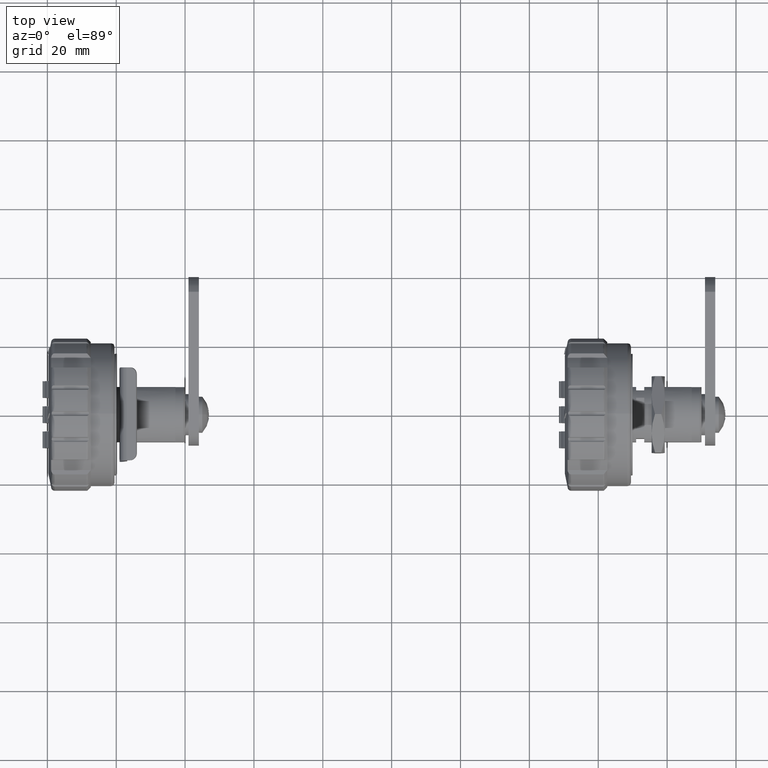
[diagram: clean part render]
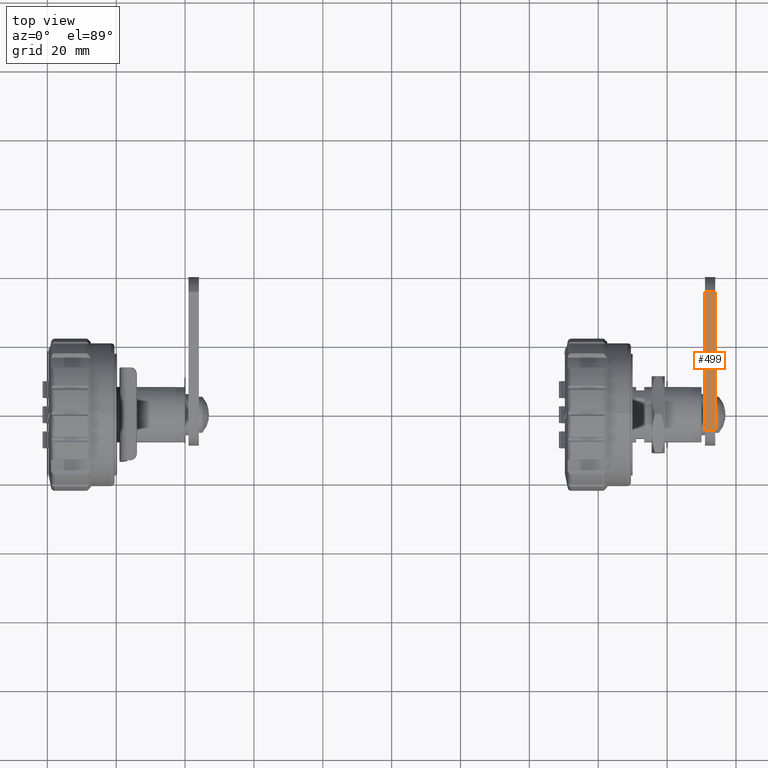
[diagram: same view with one face highlighted and labeled with its STEP entity id]
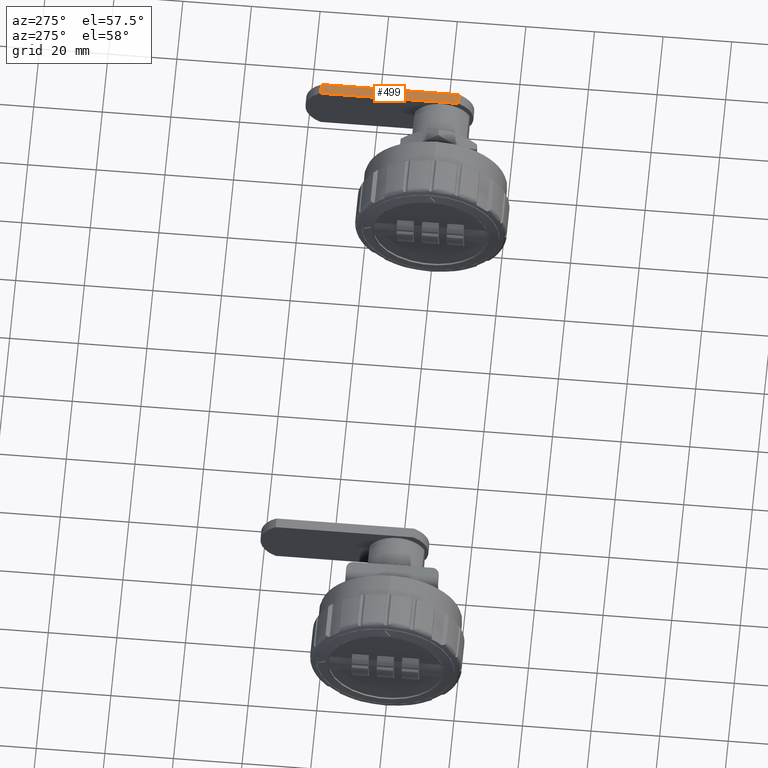
[diagram: same view with one face highlighted and labeled with its STEP entity id]
A machine part, top view. The second image highlights one B-rep face of the part: STEP entity #499.
A second angle (auxiliary view) of the same face is appended — the face is thin or edge-on in the first view.
In plain terms, the highlighted planar face has unit normal (0, -0, 1).
Its self-contained STEP definition (entity closure, byte-faithful):
#499=ADVANCED_FACE('',(#3091),#3090,.T.);
#3090=PLANE('',#5423);
#3091=FACE_OUTER_BOUND('',#5424,.T.);
#5420=CARTESIAN_POINT('',(2.07000015795E+01,3.95909015653E+01,7.75000001267E+00));
#5421=DIRECTION('',(0.00000000000E+00,-3.15483538351E-09,1.00000000000E+00));
#5422=DIRECTION('',(0.00000000000E+00,-1.00000000000E+00,-3.15483538351E-09));
#5423=AXIS2_PLACEMENT_3D('',#5420,#5421,#5422);
#5424=EDGE_LOOP('',(#7286,#7287,#7288,#7289));
#7286=ORIENTED_EDGE('',*,*,#8436,.T.);
#7287=ORIENTED_EDGE('',*,*,#8437,.F.);
#7288=ORIENTED_EDGE('',*,*,#8438,.F.);
#7289=ORIENTED_EDGE('',*,*,#8430,.T.);
#8430=EDGE_CURVE('',#13350,#13351,#13352,.T.);
#8436=EDGE_CURVE('',#13351,#13392,#13393,.T.);
#8437=EDGE_CURVE('',#13399,#13392,#13400,.T.);
#8438=EDGE_CURVE('',#13350,#13399,#13406,.T.);
#13350=VERTEX_POINT('',#18171);
#13351=VERTEX_POINT('',#18172);
#13352=LINE('',#18173,#18174);
#13392=VERTEX_POINT('',#18199);
#13393=LINE('',#18200,#18201);
#13399=VERTEX_POINT('',#18203);
#13400=LINE('',#18204,#18205);
#13406=LINE('',#18207,#18208);
#18171=CARTESIAN_POINT('',(2.40000015795E+01,-4.57575130443E+00,7.75000000000E+00));
#18172=CARTESIAN_POINT('',(2.40000015795E+01,3.55757513044E+01,7.75000000000E+00));
#18173=CARTESIAN_POINT('',(2.40000015795E+01,-4.57575130443E+00,7.74999987333E+00));
#18174=VECTOR('',#18175,4.01515026089E+01);
#18175=DIRECTION('',(0.00000000000E+00,1.00000000000E+00,3.15483537874E-09));
#18199=CARTESIAN_POINT('',(2.10000015795E+01,3.55757513044E+01,7.75000000000E+00));
#18200=CARTESIAN_POINT('',(2.40000015795E+01,3.55757513044E+01,7.75000000000E+00));
#18201=VECTOR('',#18202,3.00000000000E+00);
#18202=DIRECTION('',(-1.00000000000E+00,0.00000000000E+00,0.00000000000E+00));
#18203=CARTESIAN_POINT('',(2.10000015795E+01,-4.57575130443E+00,7.75000000000E+00));
#18204=CARTESIAN_POINT('',(2.10000015795E+01,-4.57575130443E+00,7.75000000000E+00));
#18205=VECTOR('',#18206,4.01515026089E+01);
#18206=DIRECTION('',(0.00000000000E+00,1.00000000000E+00,0.00000000000E+00));
#18207=CARTESIAN_POINT('',(2.40000015795E+01,-4.57575130443E+00,7.75000000000E+00));
#18208=VECTOR('',#18209,3.00000000000E+00);
#18209=DIRECTION('',(-1.00000000000E+00,0.00000000000E+00,0.00000000000E+00));